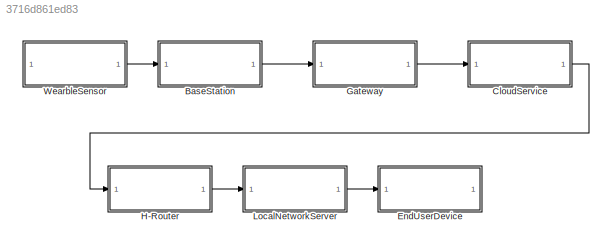
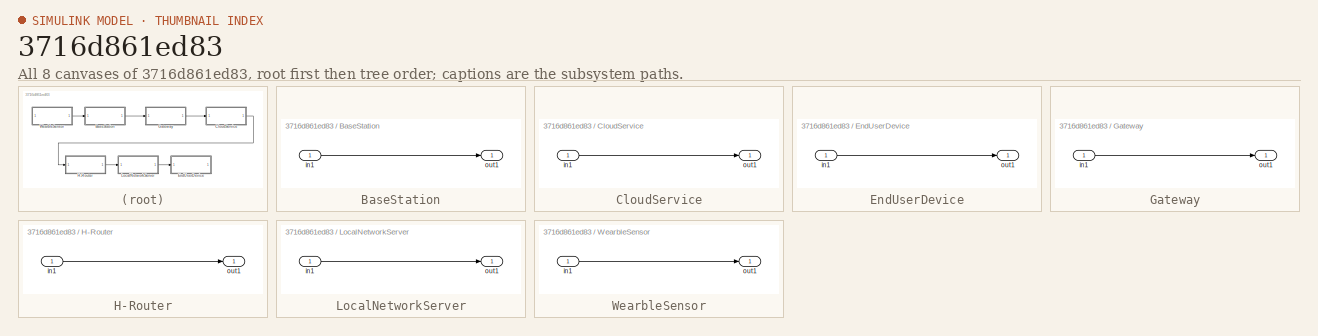
[diagram: thumbnail index - all 8 canvases of the model, root first then tree order]
MODEL slx_3716d861ed83
KIND model
CONFIG AbsTol = auto
CONFIG EnableMultiTasking = off
CONFIG FixedStep = auto
CONFIG MaxStep = auto
CONFIG MinStep = auto
CONFIG RelTol = 1e-3
CONFIG SampleTimeConstraint = Unconstrained
CONFIG SolverName = VariableStepAuto
CONFIG StartTime = 0.0
CONFIG StopTime = 10.0
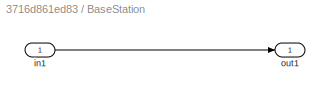
BLOCK [SubSystem] BaseStation
  Ports = [1, 1]
  RequestExecContextInheritance = off
BLOCK [Inport] BaseStation/in1
BLOCK [Outport] BaseStation/out1
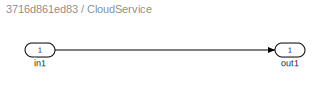
BLOCK [SubSystem] CloudService
  Ports = [1, 1]
  RequestExecContextInheritance = off
BLOCK [Inport] CloudService/in1
BLOCK [Outport] CloudService/out1
BLOCK [SubSystem] EndUserDevice
  Ports = [1, 1]
  RequestExecContextInheritance = off
BLOCK [Inport] EndUserDevice/in1
BLOCK [Outport] EndUserDevice/out1
BLOCK [SubSystem] Gateway
  Ports = [1, 1]
  RequestExecContextInheritance = off
BLOCK [Inport] Gateway/in1
BLOCK [Outport] Gateway/out1
BLOCK [SubSystem] H-Router
  Ports = [1, 1]
  RequestExecContextInheritance = off
BLOCK [Inport] H-Router/in1
BLOCK [Outport] H-Router/out1
BLOCK [SubSystem] LocalNetworkServer
  Ports = [1, 1]
  RequestExecContextInheritance = off
BLOCK [Inport] LocalNetworkServer/in1
BLOCK [Outport] LocalNetworkServer/out1
BLOCK [SubSystem] WearbleSensor
  Ports = [1, 1]
  RequestExecContextInheritance = off
BLOCK [Inport] WearbleSensor/in1
BLOCK [Outport] WearbleSensor/out1
LINE BaseStation/in1:1 -> BaseStation/out1:1
LINE BaseStation:1 -> Gateway:1
LINE CloudService/in1:1 -> CloudService/out1:1
LINE CloudService:1 -> H-Router:1
LINE EndUserDevice/in1:1 -> EndUserDevice/out1:1
LINE Gateway/in1:1 -> Gateway/out1:1
LINE Gateway:1 -> CloudService:1
LINE H-Router/in1:1 -> H-Router/out1:1
LINE H-Router:1 -> LocalNetworkServer:1
LINE LocalNetworkServer/in1:1 -> LocalNetworkServer/out1:1
LINE LocalNetworkServer:1 -> EndUserDevice:1
LINE WearbleSensor/in1:1 -> WearbleSensor/out1:1
LINE WearbleSensor:1 -> BaseStation:1
